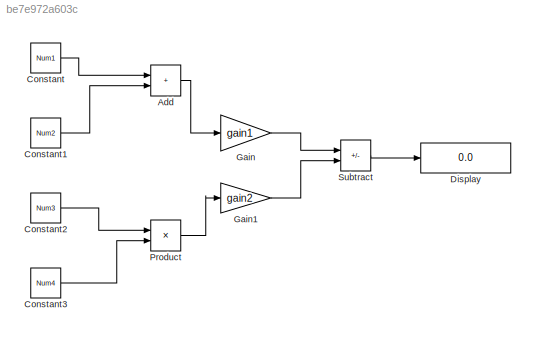
MODEL slx_be7e972a603c
KIND model
CONFIG AbsTol = auto
CONFIG EnableMultiTasking = off
CONFIG FixedStep = auto
CONFIG MaxStep = auto
CONFIG MinStep = auto
CONFIG RelTol = 1e-3
CONFIG SampleTimeConstraint = Unconstrained
CONFIG SolverName = FixedStepDiscrete
CONFIG StartTime = 0.0
CONFIG StopTime = 10.0
BLOCK [Sum] Add
  IconShape = rectangular
BLOCK [Constant] Constant
  Value = Num1
BLOCK [Constant] Constant1
  Value = Num2
BLOCK [Constant] Constant2
  Value = Num3
BLOCK [Constant] Constant3
  Value = Num4
BLOCK [Display] Display
  Decimation = 1
BLOCK [Gain] Gain
  Gain = gain1
BLOCK [Gain] Gain1
  Gain = gain2
BLOCK [Product] Product
BLOCK [Sum] Subtract
  IconShape = rectangular
  Inputs = +-
LINE Add:1 -> Gain:1
LINE Constant1:1 -> Add:2
LINE Constant2:1 -> Product:1
LINE Constant3:1 -> Product:2
LINE Constant:1 -> Add:1
LINE Gain1:1 -> Subtract:2
LINE Gain:1 -> Subtract:1
LINE Product:1 -> Gain1:1
LINE Subtract:1 -> Display:1
